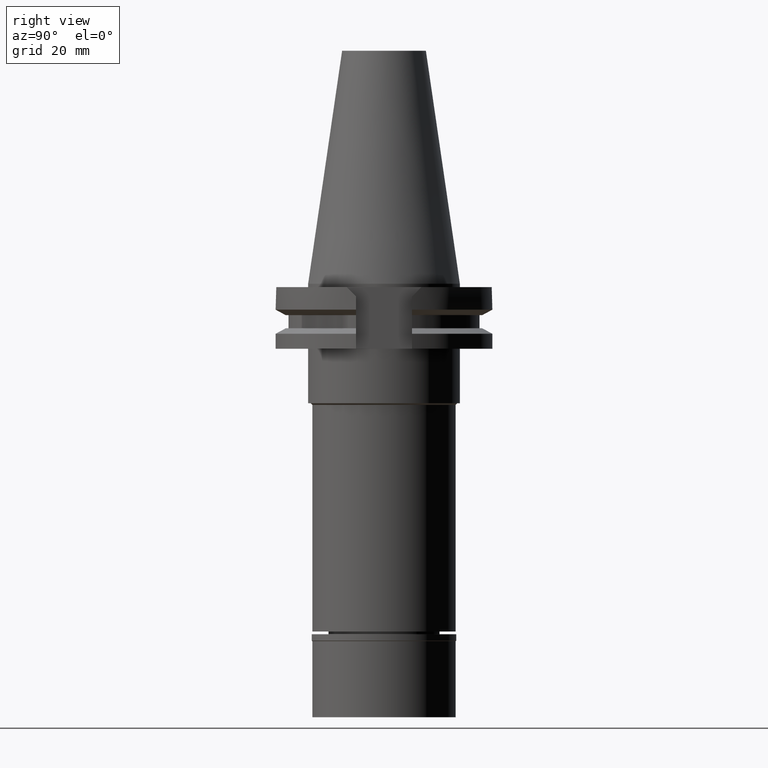
[diagram: clean part render]
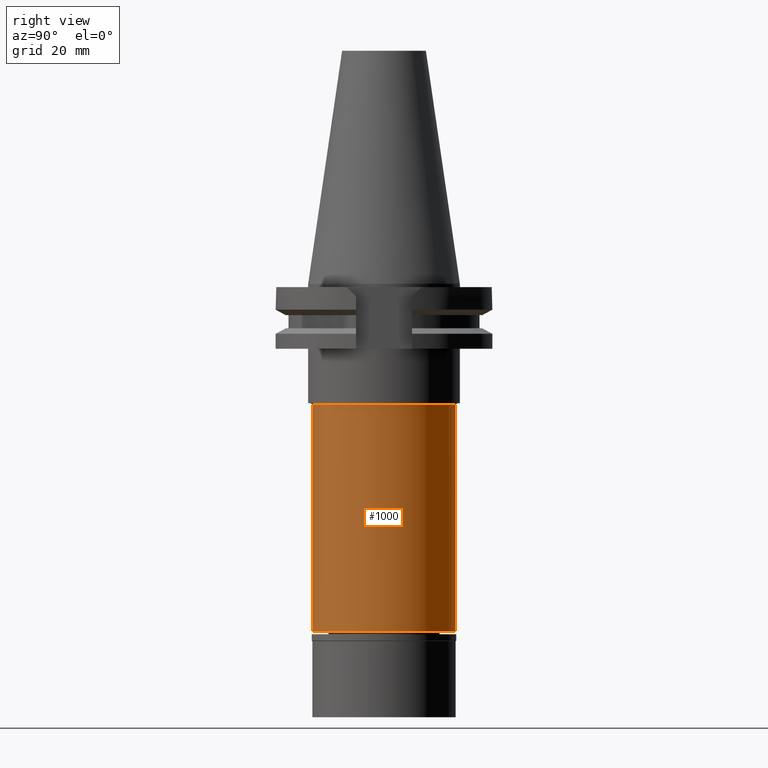
[diagram: same view with one face highlighted and labeled with its STEP entity id]
A machine part, right view. The second image highlights one B-rep face of the part: STEP entity #1000.
In plain terms, the highlighted cylindrical surface (partial cylindrical patch) has radius 21 mm, axis along (0, 0, -1).
Its self-contained STEP definition (entity closure, byte-faithful):
#1 = ORIENTED_EDGE ( 'NONE', *, *, #2433, .T. ) ;
#158 = DIRECTION ( 'NONE',  ( 0.0000000000000000000, -1.000000000000000000, 0.0000000000000000000 ) ) ;
#185 = FACE_OUTER_BOUND ( 'NONE', #1109, .T. ) ;
#523 = EDGE_CURVE ( 'NONE', #2887, #533, #887, .T. ) ;
#533 = VERTEX_POINT ( 'NONE', #3033 ) ;
#744 = EDGE_CURVE ( 'NONE', #1789, #1881, #2813, .T. ) ;
#746 = CARTESIAN_POINT ( 'NONE',  ( 0.0000000000000000000, 0.0000000000000000000, -35.50000000000000000 ) ) ;
#767 = ORIENTED_EDGE ( 'NONE', *, *, #744, .T. ) ;
#792 = CARTESIAN_POINT ( 'NONE',  ( 0.0000000000000000000, -21.00000000000000000, -35.50000000000000000 ) ) ;
#887 = CIRCLE ( 'NONE', #3213, 21.00000000000000000 ) ;
#933 = DIRECTION ( 'NONE',  ( 0.0000000000000000000, 0.0000000000000000000, -1.000000000000000000 ) ) ;
#1000 = ADVANCED_FACE ( 'NONE', ( #185 ), #3230, .T. ) ;
#1109 = EDGE_LOOP ( 'NONE', ( #1960, #1, #767, #2534 ) ) ;
#1153 = DIRECTION ( 'NONE',  ( 0.0000000000000000000, 0.0000000000000000000, -1.000000000000000000 ) ) ;
#1452 = LINE ( 'NONE', #1994, #1937 ) ;
#1496 = CARTESIAN_POINT ( 'NONE',  ( 0.0000000000000000000, 21.00000000000000000, -35.50000000000000000 ) ) ;
#1753 = DIRECTION ( 'NONE',  ( 0.0000000000000000000, 1.000000000000000000, 0.0000000000000000000 ) ) ;
#1789 = VERTEX_POINT ( 'NONE', #2497 ) ;
#1808 = DIRECTION ( 'NONE',  ( 0.0000000000000000000, 0.0000000000000000000, -1.000000000000000000 ) ) ;
#1881 = VERTEX_POINT ( 'NONE', #3098 ) ;
#1915 = CARTESIAN_POINT ( 'NONE',  ( 0.0000000000000000000, 2.175431957834999696E-14, 77.63750000000000284 ) ) ;
#1937 = VECTOR ( 'NONE', #933, 1000.000000000000000 ) ;
#1960 = ORIENTED_EDGE ( 'NONE', *, *, #523, .T. ) ;
#1994 = CARTESIAN_POINT ( 'NONE',  ( 0.0000000000000000000, 21.00000000000000000, -35.50000000000000000 ) ) ;
#2136 = DIRECTION ( 'NONE',  ( 0.0000000000000000000, 0.0000000000000000000, 1.000000000000000000 ) ) ;
#2165 = DIRECTION ( 'NONE',  ( 0.0000000000000000000, -1.000000000000000000, 0.0000000000000000000 ) ) ;
#2332 = EDGE_CURVE ( 'NONE', #2887, #1881, #1452, .T. ) ;
#2433 = EDGE_CURVE ( 'NONE', #533, #1789, #3076, .T. ) ;
#2497 = CARTESIAN_POINT ( 'NONE',  ( 0.0000000000000000000, -21.00000000000000000, -101.9000000000000057 ) ) ;
#2527 = DIRECTION ( 'NONE',  ( 0.0000000000000000000, 0.0000000000000000000, -1.000000000000000000 ) ) ;
#2534 = ORIENTED_EDGE ( 'NONE', *, *, #2332, .F. ) ;
#2813 = CIRCLE ( 'NONE', #3081, 21.00000000000000000 ) ;
#2887 = VERTEX_POINT ( 'NONE', #1496 ) ;
#2948 = AXIS2_PLACEMENT_3D ( 'NONE', #1915, #1153, #2165 ) ;
#3033 = CARTESIAN_POINT ( 'NONE',  ( 0.0000000000000000000, -21.00000000000000000, -35.50000000000000000 ) ) ;
#3076 = LINE ( 'NONE', #792, #3094 ) ;
#3081 = AXIS2_PLACEMENT_3D ( 'NONE', #3197, #2136, #158 ) ;
#3094 = VECTOR ( 'NONE', #1808, 1000.000000000000000 ) ;
#3098 = CARTESIAN_POINT ( 'NONE',  ( 0.0000000000000000000, 21.00000000000000000, -101.9000000000000057 ) ) ;
#3197 = CARTESIAN_POINT ( 'NONE',  ( 0.0000000000000000000, 2.175431957834999696E-14, -101.9000000000000057 ) ) ;
#3213 = AXIS2_PLACEMENT_3D ( 'NONE', #746, #2527, #1753 ) ;
#3230 = CYLINDRICAL_SURFACE ( 'NONE', #2948, 21.00000000000000000 ) ;